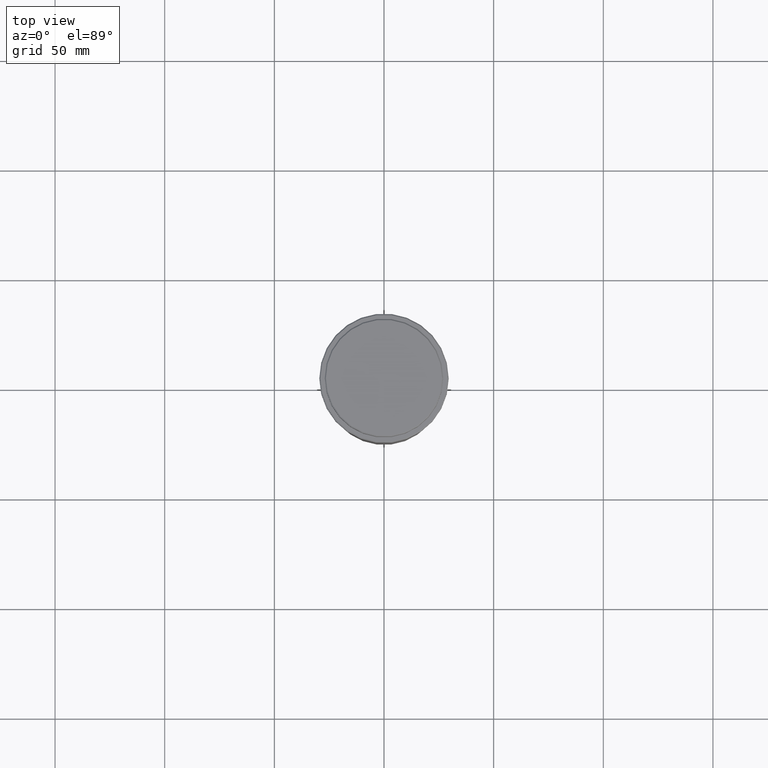
[diagram: clean part render]
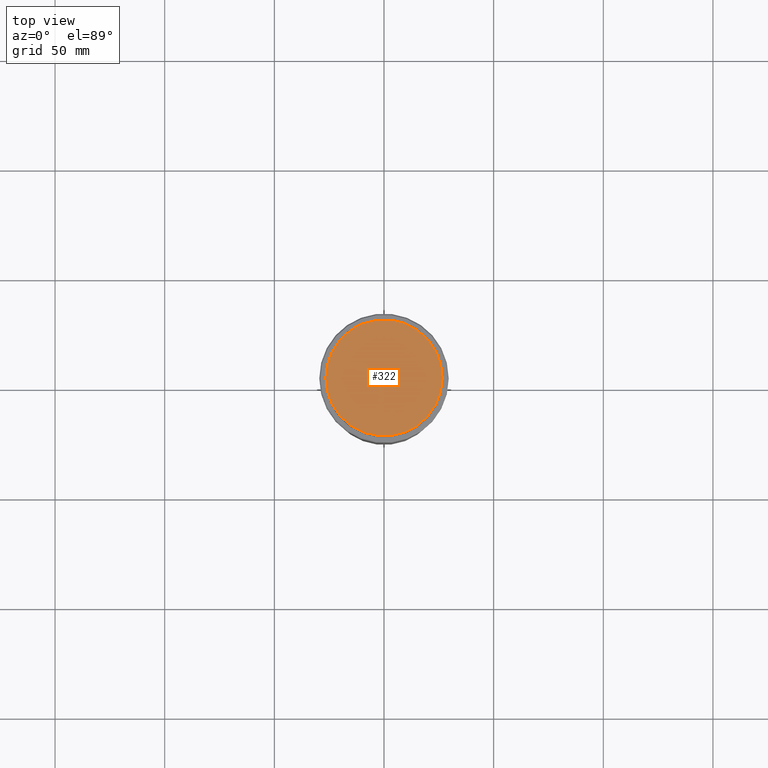
[diagram: same view with one face highlighted and labeled with its STEP entity id]
A machine part, top view. The second image highlights one B-rep face of the part: STEP entity #322.
In plain terms, the highlighted planar face has unit normal (0, -0, 1).
Its self-contained STEP definition (entity closure, byte-faithful):
#143 = PLANE ( 'NONE',  #1173 ) ;
#146 = CIRCLE ( 'NONE', #876, 26.49999999999996803 ) ;
#230 = DIRECTION ( 'NONE',  ( 1.000000000000000000, 0.000000000000000000, 0.000000000000000000 ) ) ;
#321 = EDGE_CURVE ( 'NONE', #935, #1404, #1265, .T. ) ;
#322 = ADVANCED_FACE ( 'NONE', ( #655 ), #143, .T. ) ;
#355 = CARTESIAN_POINT ( 'NONE',  ( 0.000000000000000000, 0.000000000000000000, 0.000000000000000000 ) ) ;
#369 = DIRECTION ( 'NONE',  ( -0.000000000000000000, -0.000000000000000000, 1.000000000000000000 ) ) ;
#576 = DIRECTION ( 'NONE',  ( 0.000000000000000000, -0.000000000000000000, 1.000000000000000000 ) ) ;
#655 = FACE_OUTER_BOUND ( 'NONE', #1342, .T. ) ;
#756 = AXIS2_PLACEMENT_3D ( 'NONE', #907, #369, #1120 ) ;
#775 = CARTESIAN_POINT ( 'NONE',  ( -26.49999999999996803, 0.000000000000000000, 0.000000000000000000 ) ) ;
#876 = AXIS2_PLACEMENT_3D ( 'NONE', #1117, #1099, #230 ) ;
#888 = EDGE_CURVE ( 'NONE', #1404, #935, #146, .T. ) ;
#889 = CARTESIAN_POINT ( 'NONE',  ( 26.49999999999996803, 3.275930187719167974E-15, 0.000000000000000000 ) ) ;
#907 = CARTESIAN_POINT ( 'NONE',  ( 0.000000000000000000, 0.000000000000000000, 0.000000000000000000 ) ) ;
#935 = VERTEX_POINT ( 'NONE', #889 ) ;
#1017 = DIRECTION ( 'NONE',  ( 1.000000000000000000, 0.000000000000000000, 0.000000000000000000 ) ) ;
#1099 = DIRECTION ( 'NONE',  ( -0.000000000000000000, -0.000000000000000000, 1.000000000000000000 ) ) ;
#1111 = ORIENTED_EDGE ( 'NONE', *, *, #888, .T. ) ;
#1117 = CARTESIAN_POINT ( 'NONE',  ( 0.000000000000000000, 0.000000000000000000, 0.000000000000000000 ) ) ;
#1120 = DIRECTION ( 'NONE',  ( 1.000000000000000000, 0.000000000000000000, 0.000000000000000000 ) ) ;
#1173 = AXIS2_PLACEMENT_3D ( 'NONE', #355, #576, #1017 ) ;
#1265 = CIRCLE ( 'NONE', #756, 26.49999999999996803 ) ;
#1286 = ORIENTED_EDGE ( 'NONE', *, *, #321, .T. ) ;
#1342 = EDGE_LOOP ( 'NONE', ( #1111, #1286 ) ) ;
#1404 = VERTEX_POINT ( 'NONE', #775 ) ;